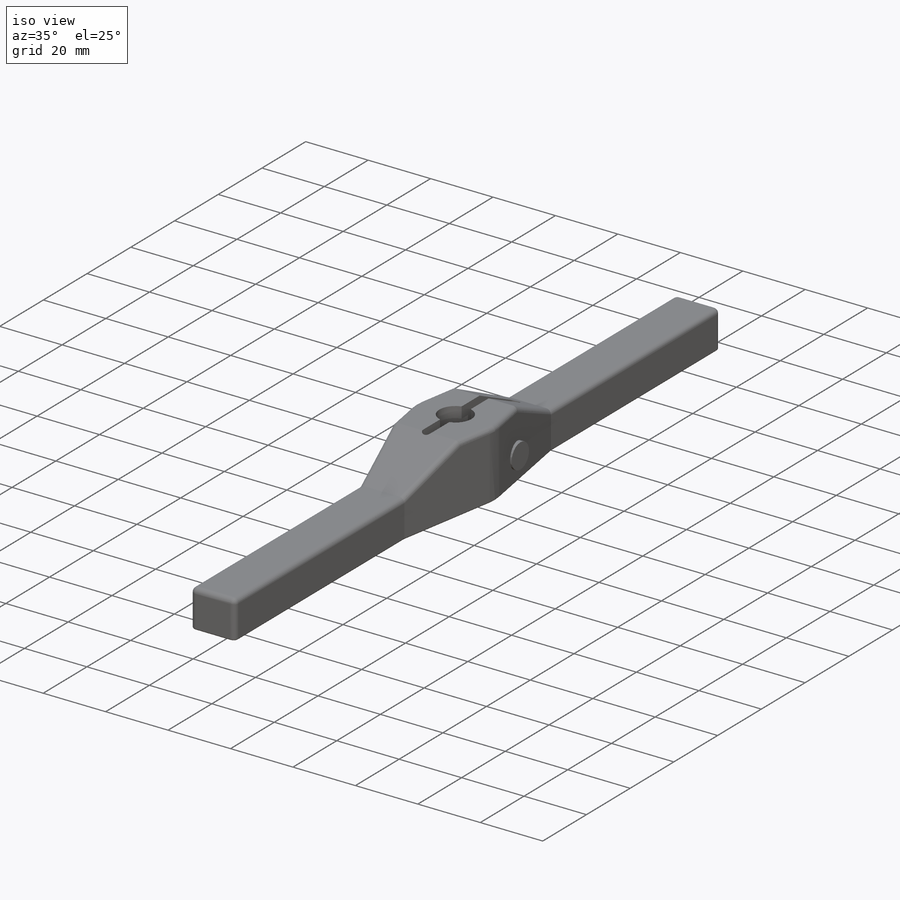
[diagram: iso view]
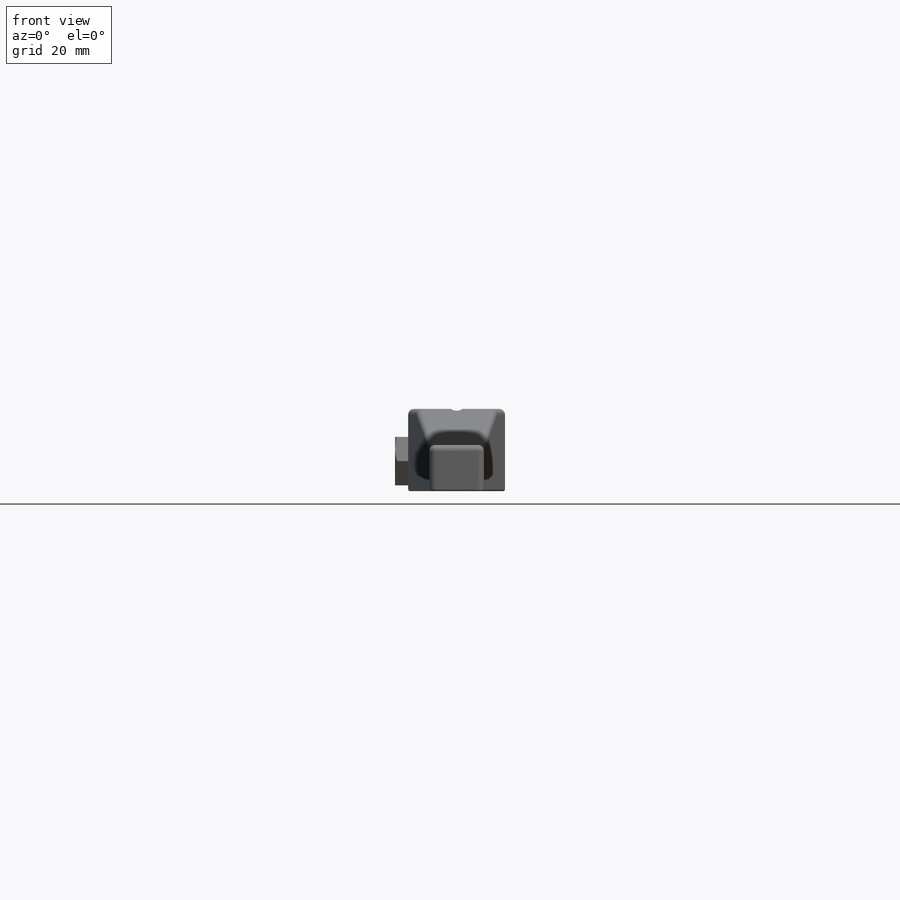
[diagram: front view]
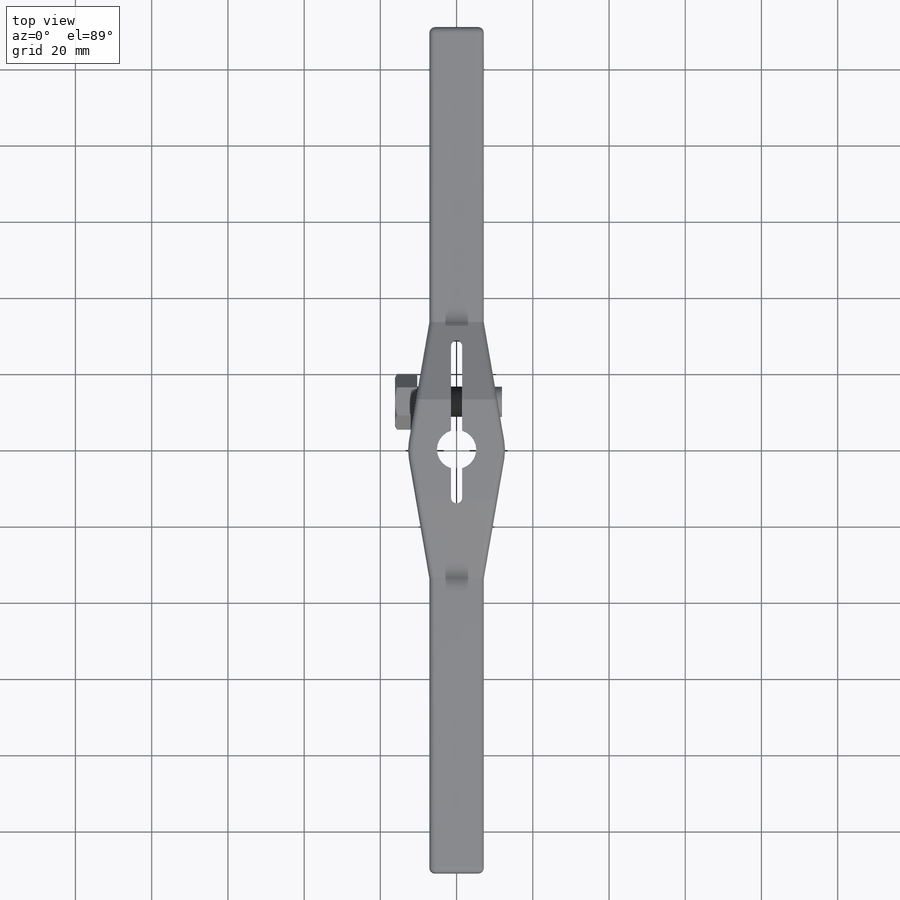
[diagram: top view]
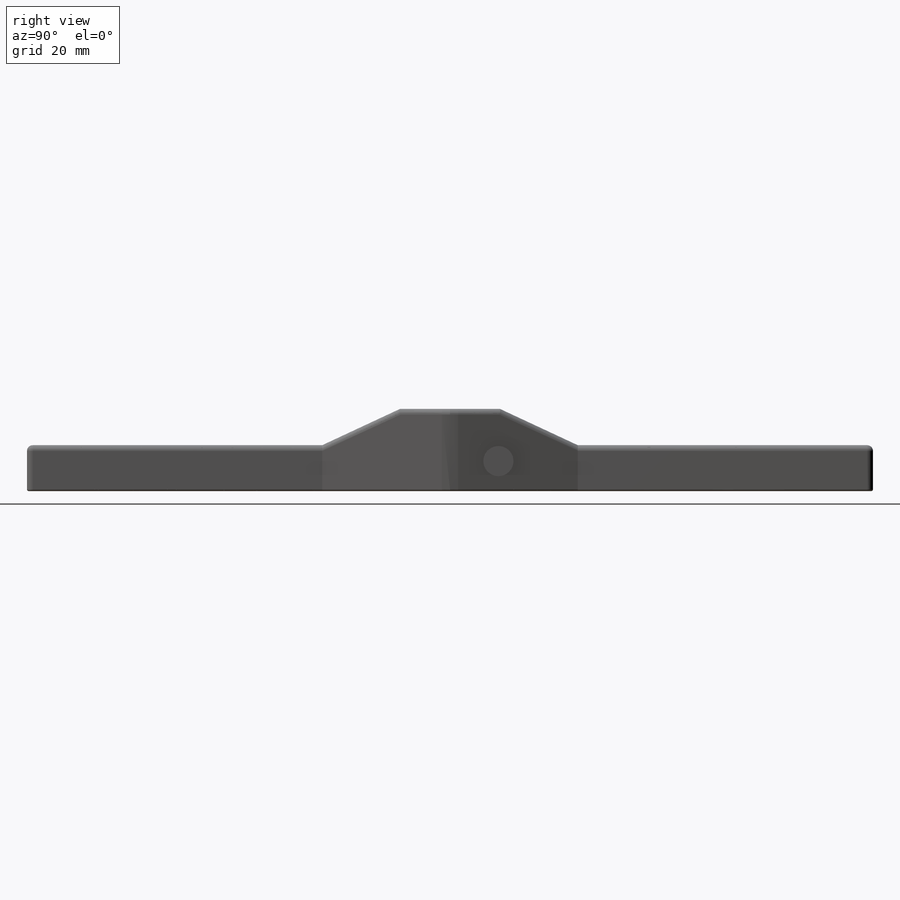
[diagram: right view]
SOLIDWORKS PART (.sldprt)
format: sldprt  version: not decoded by parser v0  size: 501,760 bytes
history: native  units: mm
features: sketch x11, extrude x5, cut_extrude x4, fillet x3, cut_revolve x2, mirror x2, material x1, plane x1 (+11 scaffold rows collapsed)
feature tree (40):
  scaffold x11  (default folders/planes/origin — collapsed)
  material  "Alloy Steel"
  sketch  "Sketch1"  dims[c1.D1=15.9004mm c1.D2=12.7mm c1.D3=14.2748mm c1.D4=103.1748mm c2.D3=33.528mm c2.D4=14.2748mm c2.D5=70.104mm]
  extrude  "Extrude1"  Depth=21.59mm
  sketch  "Sketch2"  dims[c1.D1=42.164mm c1.D2=~65.855618mm c2.D2=25.0deg c2.D3=71.12mm c2.D1=12.065mm c3.D3=33.528mm]
  cut_extrude  "Cut-Extrude1"  [1 undecoded]
  sketch  "Sketch18"  dims[D1=10.3124mm]
  extrude  "Extrude5"  Depth=18.034mm
  sketch  "Sketch3"  dims[D1=11.176mm D2=28.702mm D3=8.1788mm]
  cut_extrude  "Cut-Extrude2"  Depth=3.429mm
  sketch  "Sketch4"  dims[D1=2.921mm]
  cut_extrude  "Cut-Extrude3"  [1 undecoded]
  plane  "Plane1"  Offset=12.7mm
  sketch  "Sketch11"  dims[D1=110.998mm]
  extrude  "Extrude4"  Depth=12.065mm
  sketch  "Sketch5"  dims[D1=7.874mm D2=8.4328mm D3=19.05mm D4=2.3876mm D5=7.1374mm]
  cut_revolve  "Cut-Revolve1"  Angle=360deg
  sketch  "Sketch6"  dims[D1=12.7mm]
  extrude  "Extrude2"  Depth=5.842mm
  sketch  "Sketch7"  dims[D1=7.9248mm]
  extrude  "Extrude3"  Depth=22.225mm
  sketch  "Sketch8"  dims[c1.D1=~2.933573mm c2.D1=30.0deg c2.D2=3.175mm]
  cut_revolve  "Cut-Revolve2"  Angle=360deg
  mirror  "Mirror1"
  mirror  "Mirror2"
  fillet  "Fillet2"  Radius=1.524mm
  fillet  "Fillet3"  Radius=0.508mm
  sketch  "Sketch17"  dims[D1=12.7mm]
  cut_extrude  "Cut-Extrude4"  [1 undecoded]
  fillet  "Fillet4"  Radius=1.524mm
decode coverage: 22 of 27 modeling features carry decoded parameters
note: ~ marks probable driven/reference dimensions
note: 3 parameter values undecoded
summary: no parameter record found for 3 features
note: suppression state not decoded; provenance and decode notes live in map.json
